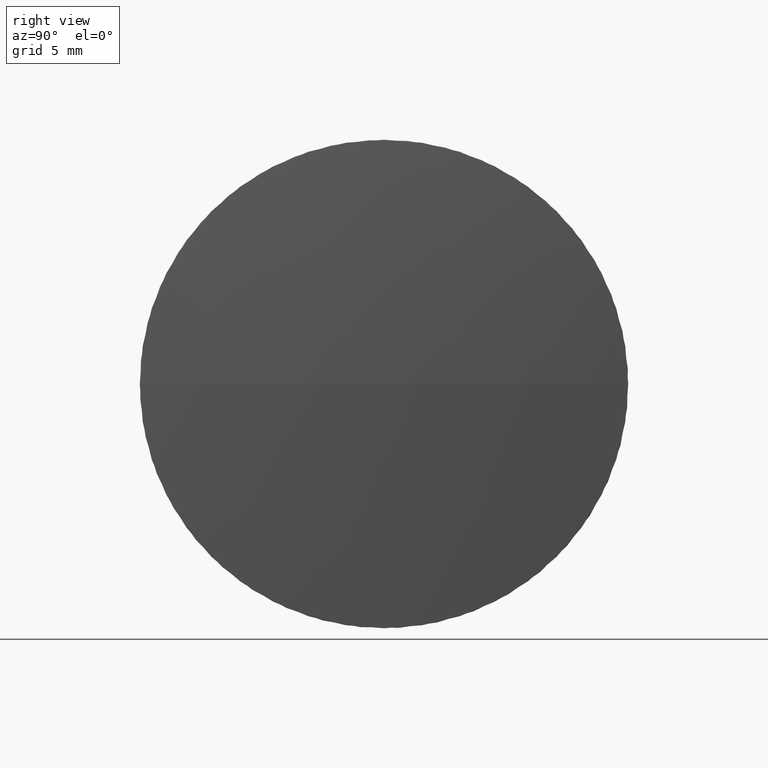
[diagram: clean part render]
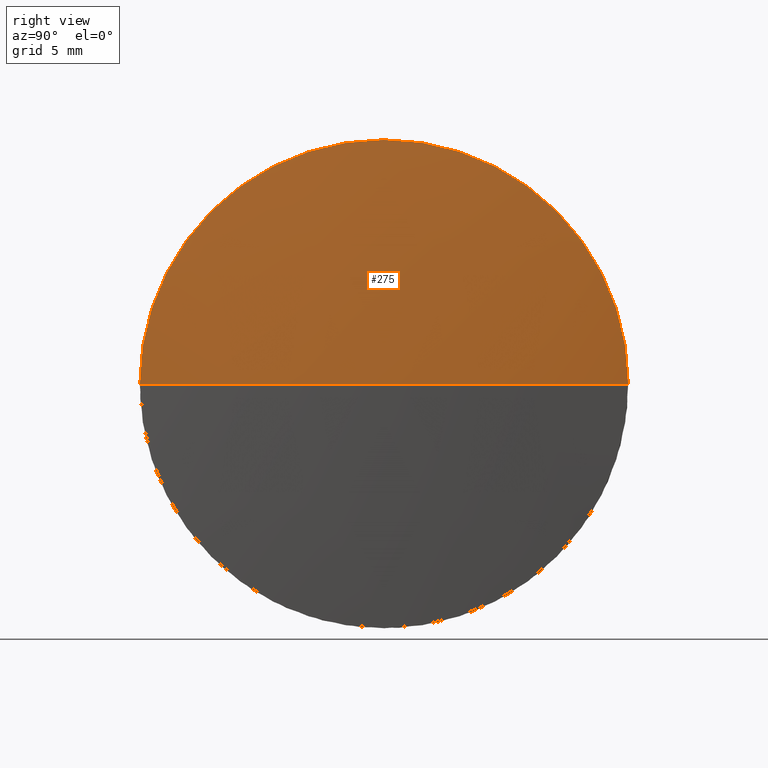
[diagram: same view with one face highlighted and labeled with its STEP entity id]
A machine part, right view. The second image highlights one B-rep face of the part: STEP entity #275.
In plain terms, the highlighted spherical surface has radius 137.53 mm.
Its self-contained STEP definition (entity closure, byte-faithful):
#16 = EDGE_LOOP ( 'NONE', ( #164, #363, #327, #56 ) ) ;
#19 = CIRCLE ( 'NONE', #257, 137.5299999999999727 ) ;
#22 = VERTEX_POINT ( 'NONE', #29 ) ;
#25 = EDGE_CURVE ( 'NONE', #22, #368, #195, .T. ) ;
#29 = CARTESIAN_POINT ( 'NONE',  ( -67.48416275664025932, 29.70318636122672729, 0.000000000000000000 ) ) ;
#34 = CIRCLE ( 'NONE', #249, 12.69999999999999929 ) ;
#56 = ORIENTED_EDGE ( 'NONE', *, *, #116, .F. ) ;
#57 = AXIS2_PLACEMENT_3D ( 'NONE', #113, #386, #77 ) ;
#68 = DIRECTION ( 'NONE',  ( -1.000000000000000000, -0.000000000000000000, -0.000000000000000000 ) ) ;
#77 = DIRECTION ( 'NONE',  ( 0.000000000000000000, 1.000000000000000000, 0.000000000000000000 ) ) ;
#110 = AXIS2_PLACEMENT_3D ( 'NONE', #340, #133, #436 ) ;
#113 = CARTESIAN_POINT ( 'NONE',  ( -205.0141627566402462, 29.70318636122672018, 0.000000000000000000 ) ) ;
#116 = EDGE_CURVE ( 'NONE', #368, #128, #247, .T. ) ;
#128 = VERTEX_POINT ( 'NONE', #131 ) ;
#131 = CARTESIAN_POINT ( 'NONE',  ( -68.07179933319122256, 29.70318636122672018, 12.69999999999999929 ) ) ;
#133 = DIRECTION ( 'NONE',  ( 0.000000000000000000, 1.224646799147353207E-16, -1.000000000000000000 ) ) ;
#139 = CARTESIAN_POINT ( 'NONE',  ( -205.0141627566402462, 29.70318636122672018, 0.000000000000000000 ) ) ;
#147 = CARTESIAN_POINT ( 'NONE',  ( -68.07179933319122256, 29.70318636122672018, 0.000000000000000000 ) ) ;
#164 = ORIENTED_EDGE ( 'NONE', *, *, #25, .F. ) ;
#180 = DIRECTION ( 'NONE',  ( -0.000000000000000000, 0.000000000000000000, 1.000000000000000000 ) ) ;
#182 = FACE_OUTER_BOUND ( 'NONE', #16, .T. ) ;
#183 = DIRECTION ( 'NONE',  ( -1.000000000000000000, -0.000000000000000000, -0.000000000000000000 ) ) ;
#195 = CIRCLE ( 'NONE', #110, 137.5299999999999727 ) ;
#243 = EDGE_CURVE ( 'NONE', #22, #366, #19, .T. ) ;
#247 = CIRCLE ( 'NONE', #446, 12.69999999999999929 ) ;
#249 = AXIS2_PLACEMENT_3D ( 'NONE', #147, #183, #320 ) ;
#250 = CARTESIAN_POINT ( 'NONE',  ( -68.07179933319123677, 42.40318636122695750, 0.000000000000000000 ) ) ;
#257 = AXIS2_PLACEMENT_3D ( 'NONE', #139, #180, #281 ) ;
#275 = ADVANCED_FACE ( 'NONE', ( #182 ), #285, .T. ) ;
#281 = DIRECTION ( 'NONE',  ( 1.000000000000000000, 0.000000000000000000, 0.000000000000000000 ) ) ;
#285 = SPHERICAL_SURFACE ( 'NONE', #57, 137.5299999999999727 ) ;
#287 = CARTESIAN_POINT ( 'NONE',  ( -68.07179933319123677, 17.00318636122648996, -1.555301434917167226E-15 ) ) ;
#320 = DIRECTION ( 'NONE',  ( 0.000000000000000000, 0.000000000000000000, 1.000000000000000000 ) ) ;
#327 = ORIENTED_EDGE ( 'NONE', *, *, #356, .F. ) ;
#340 = CARTESIAN_POINT ( 'NONE',  ( -205.0141627566402462, 29.70318636122672018, 0.000000000000000000 ) ) ;
#356 = EDGE_CURVE ( 'NONE', #128, #366, #34, .T. ) ;
#363 = ORIENTED_EDGE ( 'NONE', *, *, #243, .T. ) ;
#366 = VERTEX_POINT ( 'NONE', #250 ) ;
#368 = VERTEX_POINT ( 'NONE', #287 ) ;
#373 = DIRECTION ( 'NONE',  ( 0.000000000000000000, 0.000000000000000000, 1.000000000000000000 ) ) ;
#386 = DIRECTION ( 'NONE',  ( -0.000000000000000000, 0.000000000000000000, -1.000000000000000000 ) ) ;
#434 = CARTESIAN_POINT ( 'NONE',  ( -68.07179933319122256, 29.70318636122672018, 0.000000000000000000 ) ) ;
#436 = DIRECTION ( 'NONE',  ( 0.000000000000000000, 1.000000000000000000, 1.224646799147353207E-16 ) ) ;
#446 = AXIS2_PLACEMENT_3D ( 'NONE', #434, #68, #373 ) ;